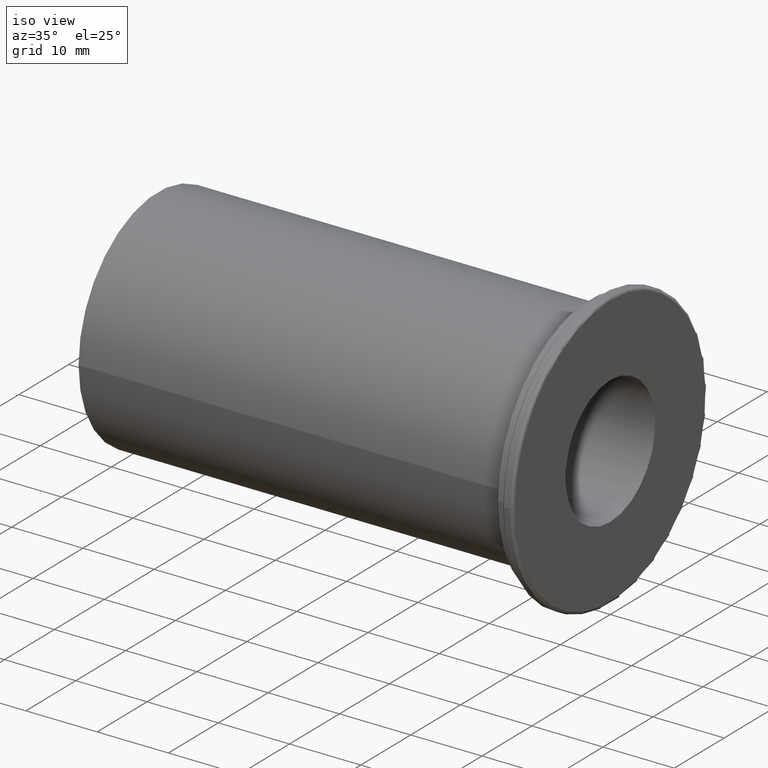
[diagram: clean part render]
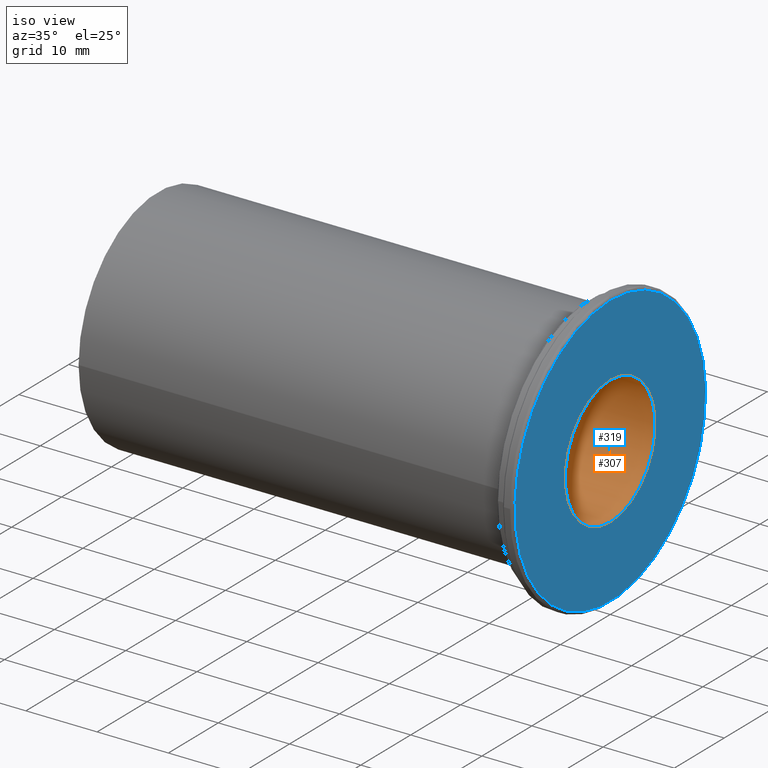
[diagram: same view with the hole feature highlighted: cylindrical wall and planar end face, labeled with their STEP entity ids]
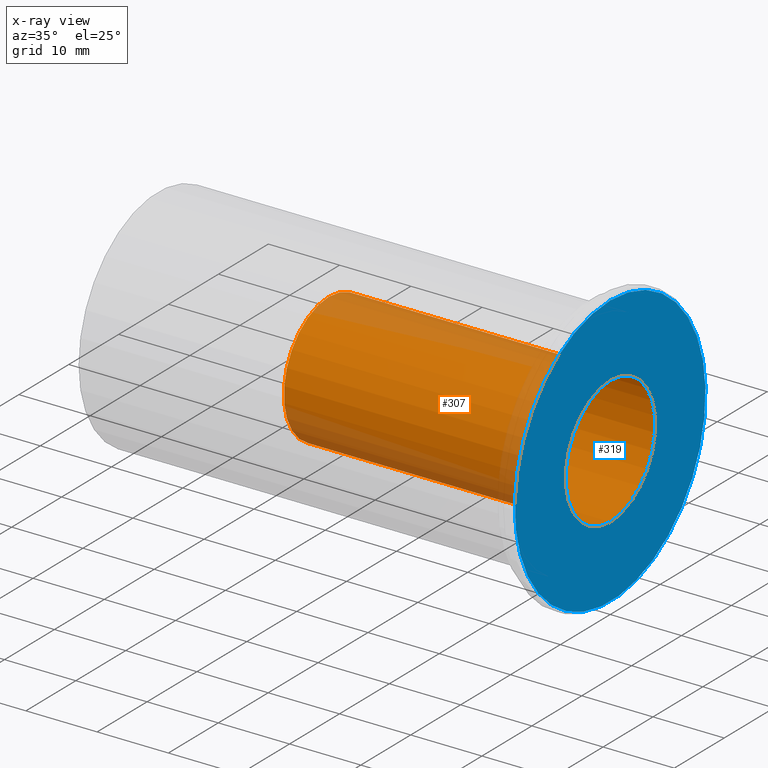
[diagram: x-ray of the same camera — body ghosted, the hole faces saturated]
A machine part, iso view. The highlighted faces form one hole feature of diameter 18 mm: the cylindrical wall (entity #307, orange) and its adjacent planar end face (entity #319, blue) — they share a circular edge in the B-rep.
The next image is the same camera in x-ray (body ghosted, the hole faces saturated) — the bore reads through the body.
Wall:
#99=FACE_OUTER_BOUND('',#115,.T.);
#115=EDGE_LOOP('',(#235,#236,#237,#238,#239));
#135=LINE('',#528,#145);
#145=VECTOR('',#407,9.);
#155=CIRCLE('',#347,9.);
#156=CIRCLE('',#348,9.);
#157=CIRCLE('',#349,9.);
#181=VERTEX_POINT('',#525);
#182=VERTEX_POINT('',#527);
#183=VERTEX_POINT('',#529);
#202=EDGE_CURVE('',#181,#181,#155,.T.);
#203=EDGE_CURVE('',#181,#182,#135,.T.);
#204=EDGE_CURVE('',#183,#182,#156,.T.);
#205=EDGE_CURVE('',#182,#183,#157,.T.);
#235=ORIENTED_EDGE('',*,*,#202,.F.);
#236=ORIENTED_EDGE('',*,*,#203,.T.);
#237=ORIENTED_EDGE('',*,*,#204,.F.);
#238=ORIENTED_EDGE('',*,*,#205,.F.);
#239=ORIENTED_EDGE('',*,*,#203,.F.);
#301=CYLINDRICAL_SURFACE('',#346,9.);
#307=ADVANCED_FACE('',(#99),#301,.F.);
#346=AXIS2_PLACEMENT_3D('',#524,#403,#404);
#347=AXIS2_PLACEMENT_3D('',#526,#405,#406);
#348=AXIS2_PLACEMENT_3D('',#530,#408,#409);
#349=AXIS2_PLACEMENT_3D('',#531,#410,#411);
#403=DIRECTION('center_axis',(1.,0.,0.));
#404=DIRECTION('ref_axis',(0.,0.,-1.));
#405=DIRECTION('center_axis',(-1.,0.,0.));
#406=DIRECTION('ref_axis',(0.,0.,-1.));
#407=DIRECTION('',(-1.,0.,0.));
#408=DIRECTION('center_axis',(1.,0.,0.));
#409=DIRECTION('ref_axis',(0.,0.,-1.));
#410=DIRECTION('center_axis',(1.,0.,0.));
#411=DIRECTION('ref_axis',(0.,0.,-1.));
#524=CARTESIAN_POINT('Origin',(-84.1085608009078,0.,0.));
#525=CARTESIAN_POINT('',(0.,-1.10218211923262E-15,9.));
#526=CARTESIAN_POINT('Origin',(0.,0.,0.));
#527=CARTESIAN_POINT('',(-39.5,-1.10218211923262E-15,9.));
#528=CARTESIAN_POINT('',(-84.1085608009078,-1.10218211923262E-15,9.));
#529=CARTESIAN_POINT('',(-39.5,-1.10218211923262E-15,-9.));
#530=CARTESIAN_POINT('Origin',(-39.5,0.,0.));
#531=CARTESIAN_POINT('Origin',(-39.5,0.,0.));
End face:
#89=FACE_BOUND('',#130,.T.);
#93=PLANE('',#379);
#111=FACE_OUTER_BOUND('',#129,.T.);
#129=EDGE_LOOP('',(#288));
#130=EDGE_LOOP('',(#289));
#155=CIRCLE('',#347,9.);
#174=CIRCLE('',#377,19.1);
#181=VERTEX_POINT('',#525);
#200=VERTEX_POINT('',#583);
#202=EDGE_CURVE('',#181,#181,#155,.T.);
#230=EDGE_CURVE('',#200,#200,#174,.T.);
#288=ORIENTED_EDGE('',*,*,#230,.F.);
#289=ORIENTED_EDGE('',*,*,#202,.T.);
#319=ADVANCED_FACE('',(#111,#89),#93,.T.);
#347=AXIS2_PLACEMENT_3D('',#526,#405,#406);
#377=AXIS2_PLACEMENT_3D('',#584,#474,#475);
#379=AXIS2_PLACEMENT_3D('',#586,#478,#479);
#405=DIRECTION('center_axis',(-1.,0.,0.));
#406=DIRECTION('ref_axis',(0.,0.,-1.));
#474=DIRECTION('center_axis',(-1.,0.,0.));
#475=DIRECTION('ref_axis',(0.,-1.,1.83697019872103E-16));
#478=DIRECTION('center_axis',(1.,0.,0.));
#479=DIRECTION('ref_axis',(0.,0.,-1.));
#525=CARTESIAN_POINT('',(0.,-1.10218211923262E-15,9.));
#526=CARTESIAN_POINT('Origin',(0.,0.,0.));
#583=CARTESIAN_POINT('',(4.44089209850063E-15,-2.33907538637144E-15,19.1));
#584=CARTESIAN_POINT('Origin',(4.44089209850063E-15,0.,0.));
#586=CARTESIAN_POINT('Origin',(4.44089209850063E-15,0.,0.));